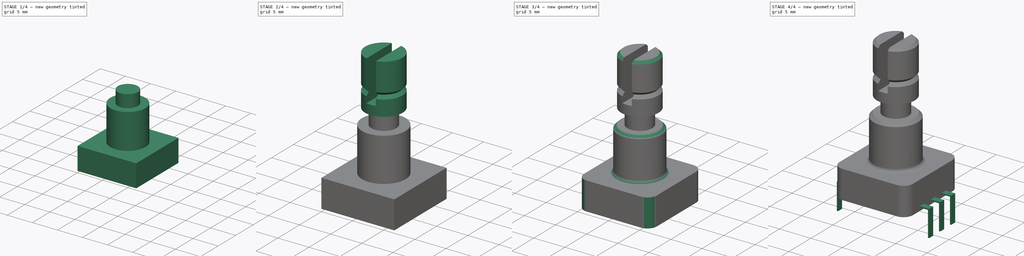
[diagram: build sequence overview — one tinted view per stage of 4, left to right]
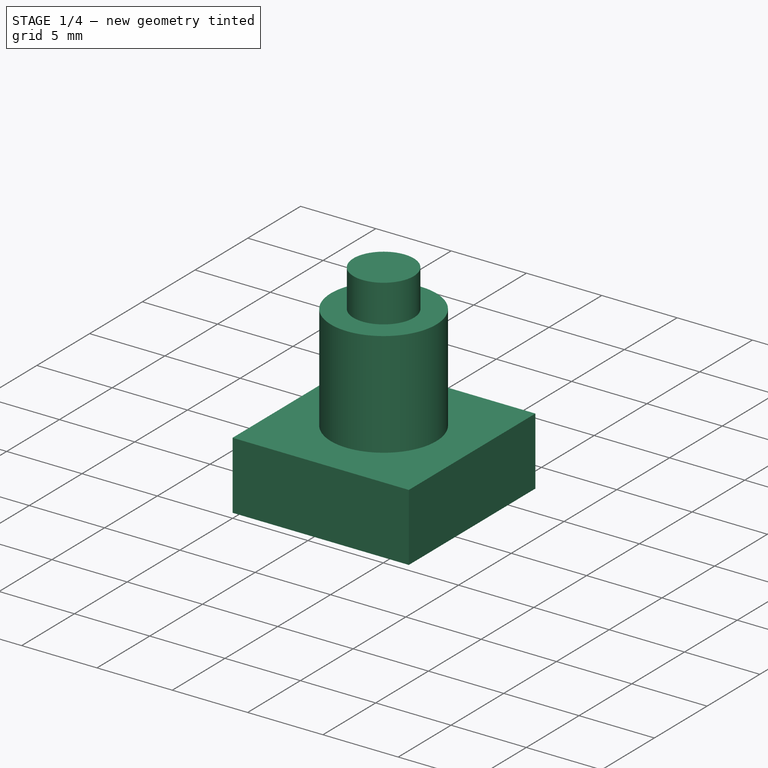
[diagram: stage 1 of 4 — iso view after this stage's code; geometry added in this stage tinted green]
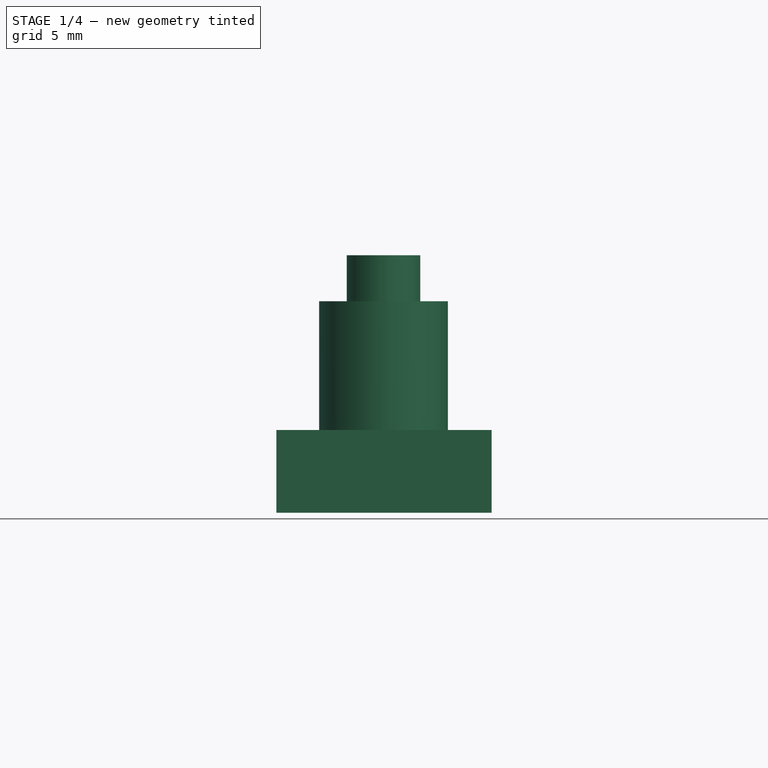
[diagram: stage 1 of 4 — front view after this stage's code; geometry added in this stage tinted green]
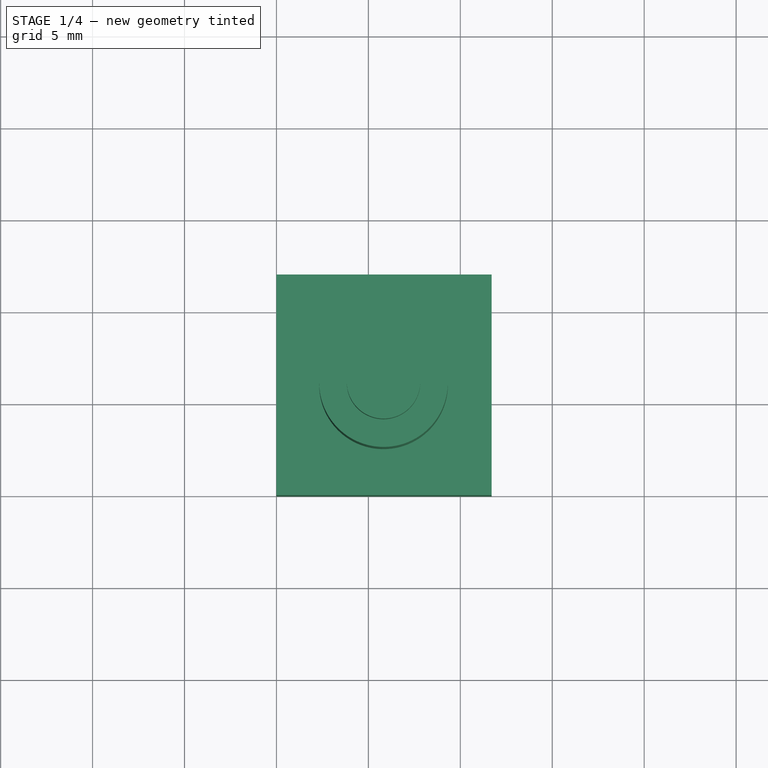
[diagram: stage 1 of 4 — top view after this stage's code; geometry added in this stage tinted green]
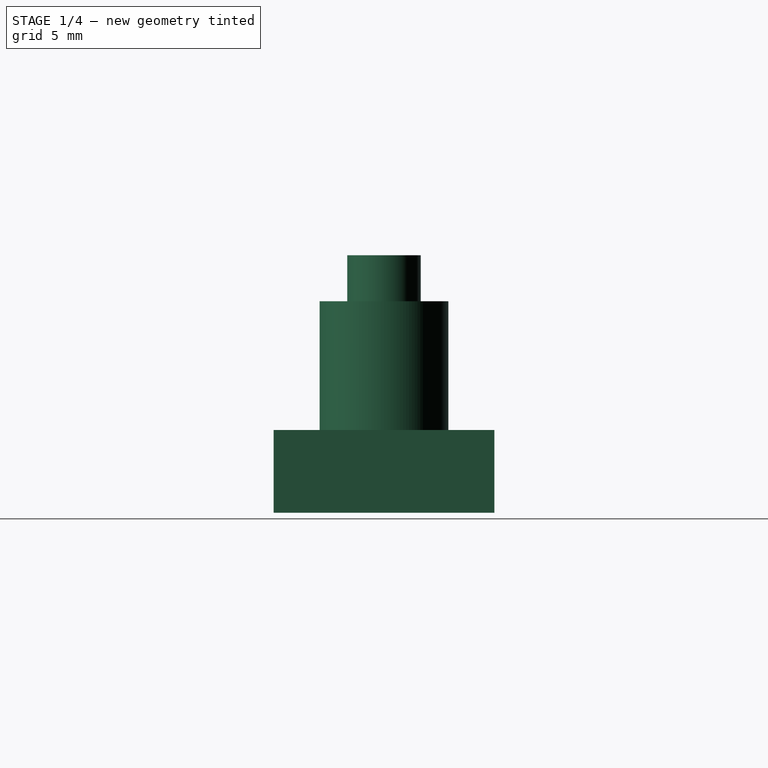
[diagram: stage 1 of 4 — right view after this stage's code; geometry added in this stage tinted green]
FCSTD DOCUMENT  (FreeCAD 1.0R39109 (Git))
Label: ALPSALPINE-EC11E09444A8
License: All rights reserved
LicenseURL: https://en.wikipedia.org/wiki/All_rights_reserved
objects: Sketcher::SketchObject×8, PartDesign::Pad×5, PartDesign::Plane×3, PartDesign::Pocket×2, PartDesign::Chamfer×2, PartDesign::Fillet×2, PartDesign::Groove×1, PartDesign::LinearPattern×1, PartDesign::Body×1
note: 58 computed .brp shape members not serialized (recipe doc carries the construction recipe); baked Part::Feature solids carry a one-line shape summary decoded from their .brp

FEATURE [Sketcher::SketchObject] Sketch
  ArcFitTolerance = 1e-06
  AttachmentSupport = -> [XY_Plane]
  FullyConstrained = true
  MakeInternals = false
  MapMode = 5
  sketch-geometry (4):
    g0: LineSegment StartX=0 StartY=0 StartZ=0 EndX=11.7 EndY=0 EndZ=0
    g1: LineSegment StartX=11.7 StartY=0 StartZ=0 EndX=11.7 EndY=12 EndZ=0
    g2: LineSegment StartX=11.7 StartY=12 StartZ=0 EndX=0 EndY=12 EndZ=0
    g3: LineSegment StartX=0 StartY=12 StartZ=0 EndX=0 EndY=0 EndZ=0
  constraints (11):
    c: Coincident(g0,g1)
    c: Coincident(g1,g2)
    c: Coincident(g2,g3)
    c: Coincident(g3,g0)
    c: Horizontal(g0)
    c: Horizontal(g2)
    c: Vertical(g1)
    c: Vertical(g3)
    c: Distance(g1,g3) = 11.7
    c: Distance(g0,g2) = 12
    c: Coincident(g0,g-1)
FEATURE [PartDesign::Pad] Pad
  Direction = (0,0,1)
  Length = 4.5
  Length2 = 10
  Profile = -> Sketch
  ReferenceAxis = -> Sketch [N_Axis]
  Refine = true
  Suppressed = false
  Type = 0
FEATURE [Sketcher::SketchObject] Sketch001
  ArcFitTolerance = 1e-06
  AttachmentSupport = -> [Pad]
  FullyConstrained = false
  MakeInternals = false
  MapMode = 5
  Placement = pos=(0,0,4.5) rot=(0,0,1;0rad)
  sketch-geometry (1):
    g0: Circle CenterX=5.82384 CenterY=6 CenterZ=0 NormalX=0 NormalY=0 NormalZ=1 AngleXU=0 Radius=3.5
  constraints (2):
    c: Diameter(g0) = 7
    c: DistanceY(g-1,g0) = 6
FEATURE [PartDesign::Pad] Pad001
  BaseFeature = -> Pad
  Direction = (0,0,1)
  Length = 7
  Length2 = 10
  Profile = -> Sketch001
  ReferenceAxis = -> Sketch001 [N_Axis]
  Refine = true
  Suppressed = false
  Type = 0
FEATURE [Sketcher::SketchObject] Sketch002
  ArcFitTolerance = 1e-06
  AttachmentSupport = -> [Pad001]
  ExternalGeometry = -> [Pad001]
  FullyConstrained = true
  MakeInternals = false
  MapMode = 5
  Placement = pos=(0,0,11.5) rot=(0,0,1;0rad)
  sketch-geometry (1):
    g0: Circle CenterX=5.82384 CenterY=6 CenterZ=0 NormalX=0 NormalY=0 NormalZ=1 AngleXU=0 Radius=2
  constraints (2):
    c: Coincident(g-3,g0)
    c: Diameter(g0) = 4
FEATURE [PartDesign::Pad] Pad002
  BaseFeature = -> Pad001
  Direction = (0,0,1)
  Length = 2.5
  Length2 = 10
  Profile = -> Sketch002
  ReferenceAxis = -> Sketch002 [N_Axis]
  Refine = true
  Suppressed = false
  Type = 0
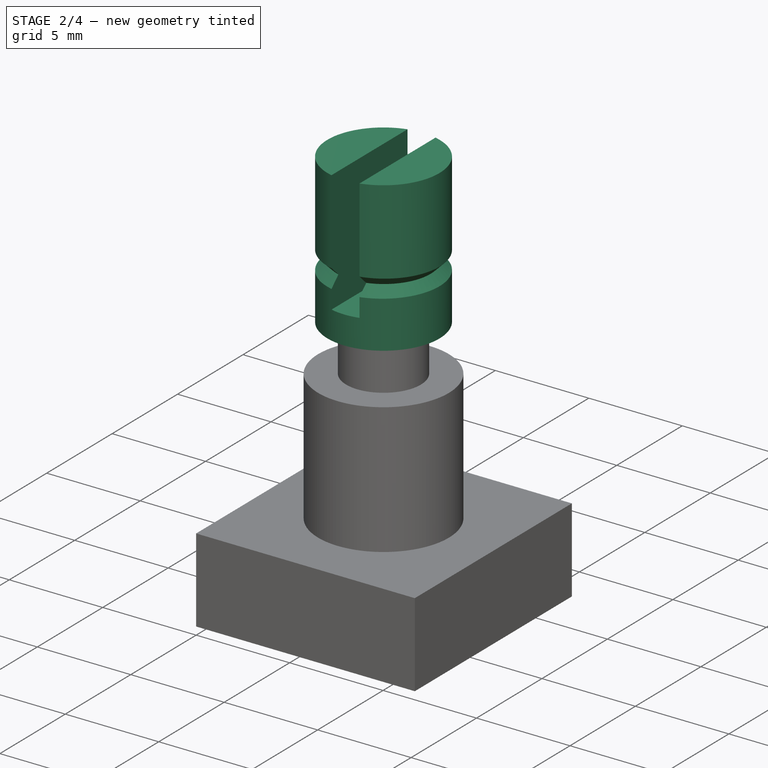
[diagram: stage 2 of 4 — iso view after this stage's code; geometry added in this stage tinted green]
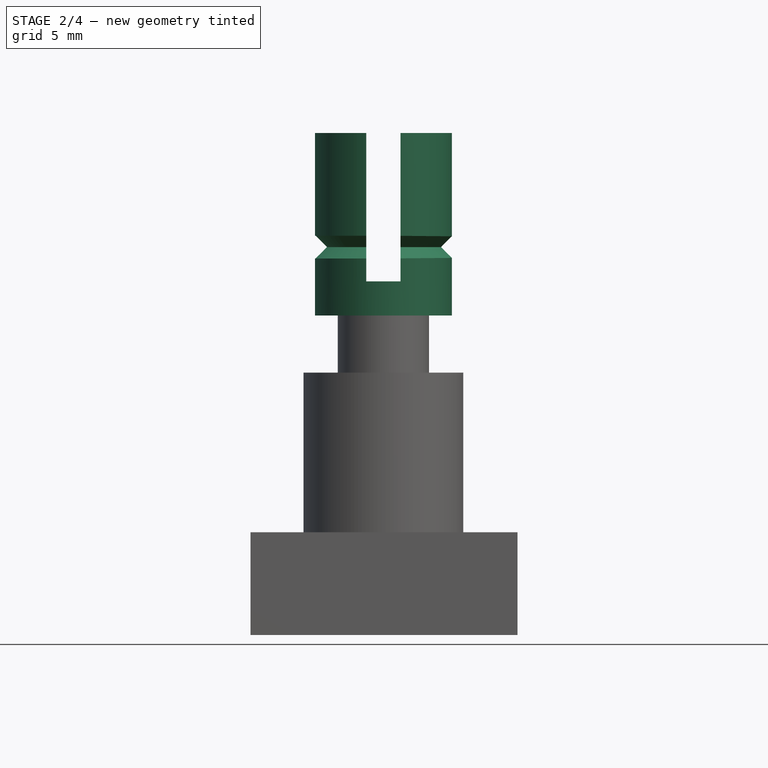
[diagram: stage 2 of 4 — front view after this stage's code; geometry added in this stage tinted green]
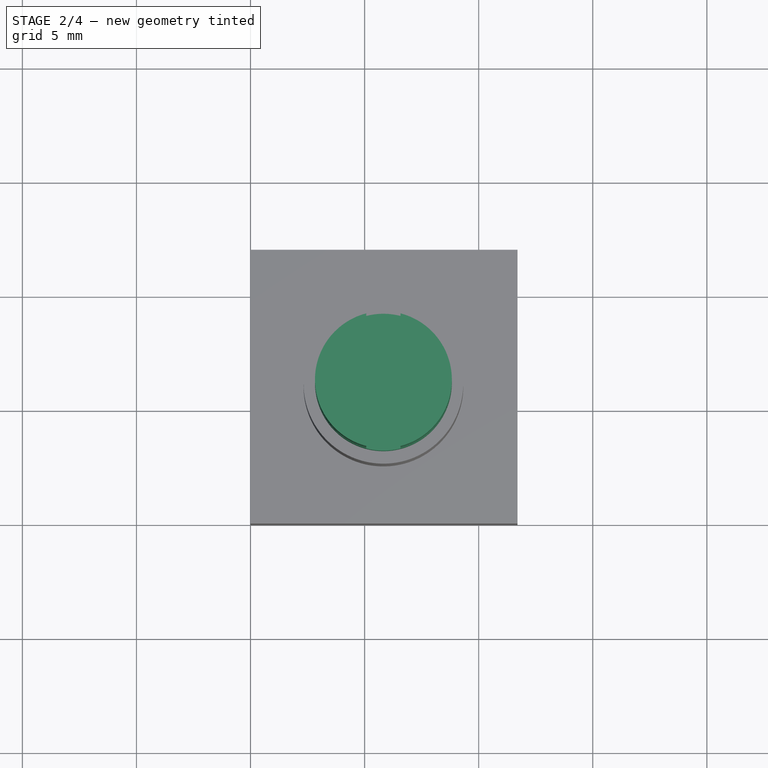
[diagram: stage 2 of 4 — top view after this stage's code; geometry added in this stage tinted green]
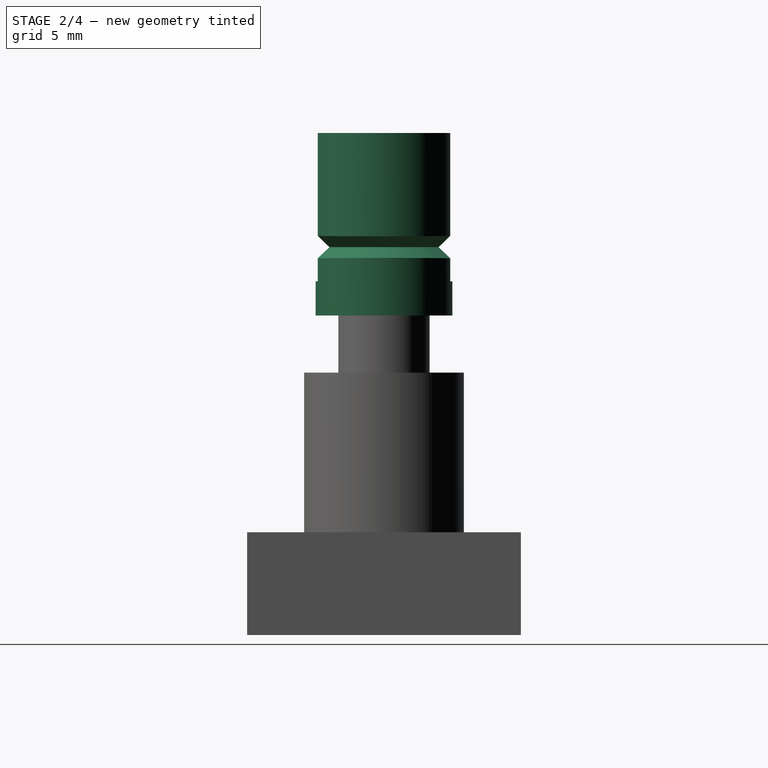
[diagram: stage 2 of 4 — right view after this stage's code; geometry added in this stage tinted green]
FEATURE [Sketcher::SketchObject] Sketch004
  ArcFitTolerance = 1e-06
  AttachmentSupport = -> [Pad002]
  ExternalGeometry = -> [Pad002]
  FullyConstrained = true
  MakeInternals = false
  MapMode = 5
  Placement = pos=(0,0,14) rot=(0,0,1;0rad)
  sketch-geometry (1):
    g0: Circle CenterX=5.82384 CenterY=6 CenterZ=0 NormalX=0 NormalY=0 NormalZ=1 AngleXU=0 Radius=3
  constraints (2):
    c: Coincident(g-3,g0)
    c: Diameter(g0) = 6
FEATURE [PartDesign::Pad] Pad003
  BaseFeature = -> Pad002
  Direction = (0,0,1)
  Length = 8
  Length2 = 10
  Profile = -> Sketch004
  ReferenceAxis = -> Sketch004 [N_Axis]
  Refine = true
  Suppressed = false
  Type = 0
FEATURE [PartDesign::Plane] DatumPlane
  AttachmentOffset = pos=(0,0,0) rot=(0,1,0;1.5708rad)
  AttachmentSupport = -> [Pad003]
  Length = 60
  MapMode = 45
  Placement = pos=(5.85,6,2.25) rot=(0,1,0;1.5708rad)
  ResizeMode = 0
  Width = 60
FEATURE [Sketcher::SketchObject] Sketch005
  ArcFitTolerance = 1e-06
  AttachmentSupport = -> [DatumPlane]
  ExternalGeometry = -> [Pad003]
  FullyConstrained = false
  MakeInternals = false
  MapMode = 5
  Placement = pos=(5.85,6,2.25) rot=(0,1,0;1.5708rad)
  sketch-geometry (8):
    g0: LineSegment [constr] StartX=-19.75 StartY=3 StartZ=0 EndX=-11.75 EndY=3 EndZ=0
    g1: LineSegment StartX=-15.25 StartY=3 StartZ=0 EndX=-14.75 EndY=2.5 EndZ=0
    g2: LineSegment StartX=-14.25 StartY=3 StartZ=0 EndX=-14.75 EndY=2.5 EndZ=0
    g3: LineSegment StartX=-15.25 StartY=3 StartZ=0 EndX=-14.25 EndY=3 EndZ=0
    g4: LineSegment StartX=-15.25 StartY=3 StartZ=0 EndX=-14.25 EndY=3 EndZ=0
    g5: LineSegment StartX=-14.25 StartY=3 StartZ=0 EndX=-14.25 EndY=3.203 EndZ=0
    g6: LineSegment StartX=-14.25 StartY=3.203 StartZ=0 EndX=-15.25 EndY=3.203 EndZ=0
    g7: LineSegment StartX=-15.25 StartY=3.203 StartZ=0 EndX=-15.25 EndY=3 EndZ=0
  constraints (20):
    c: Coincident(g0,g-4)
    c: Coincident(g0,g-3)
    c: PointOnObject(g1,g0)
    c: PointOnObject(g2,g0)
    c: Coincident(g2,g1)
    c: Angle(g2,g1) = 1.5708
    c: DistanceX(g1,g2) = 1
    c: DistanceX(g0,g1) = 4.5
    c: Coincident(g3,g1)
    c: Coincident(g3,g2)
    c: Equal(g2,g1)
    c: Coincident(g4,g5)
    c: Coincident(g5,g6)
    c: Coincident(g6,g7)
    c: Coincident(g7,g4)
    c: Horizontal(g6)
    c: Vertical(g5)
    c: Vertical(g7)
    c: Coincident(g4,g1)
    c: Coincident(g4,g2)
FEATURE [PartDesign::Groove] Groove
  Angle = 360
  Angle2 = 60
  Axis = (2e-16,0,-1)
  Base = (5.85,6,2.25)
  BaseFeature = -> Pad003
  Profile = -> Sketch005
  ReferenceAxis = -> Sketch005 [H_Axis]
  Refine = true
  Reversed = true
  Suppressed = false
  Type = 0
FEATURE [Sketcher::SketchObject] Sketch006
  ArcFitTolerance = 1e-06
  AttachmentSupport = -> [Groove]
  ExternalGeometry = -> [Groove]
  FullyConstrained = true
  MakeInternals = false
  MapMode = 5
  Placement = pos=(0,0,22) rot=(0,0,1;0rad)
  sketch-geometry (4):
    g0: LineSegment StartX=5.07384 StartY=8.90474 StartZ=0 EndX=5.07384 EndY=3.09526 EndZ=0
    g1: LineSegment StartX=6.57384 StartY=3.09526 StartZ=0 EndX=6.57384 EndY=8.90474 EndZ=0
    g2: ArcOfCircle CenterX=5.82384 CenterY=6 CenterZ=0 NormalX=0 NormalY=0 NormalZ=1 AngleXU=0 Radius=3 StartAngle=1.31812 EndAngle=1.82348
    g3: ArcOfCircle CenterX=5.82384 CenterY=6 CenterZ=0 NormalX=0 NormalY=0 NormalZ=1 AngleXU=0 Radius=3 StartAngle=4.45971 EndAngle=4.96507
  constraints (12):
    c: Vertical(g0)
    c: Vertical(g1)
    c: PointOnObject(g0,g-3)
    c: PointOnObject(g1,g-3)
    c: DistanceX(g0,g1) = 1.5
    c: Coincident(g3,g0)
    c: Coincident(g2,g-3)
    c: Coincident(g3,g1)
    c: Coincident(g2,g0)
    c: Coincident(g1,g2)
    c: Coincident(g3,g2)
    c: Distance(g2,g1) = 0.75
FEATURE [PartDesign::Pocket] Pocket
  BaseFeature = -> Groove
  Direction = (0,0,-1)
  Length = 6.5
  Length2 = 5
  Profile = -> Sketch006
  ReferenceAxis = -> Sketch006 [N_Axis]
  Refine = true
  Suppressed = false
  Type = 0
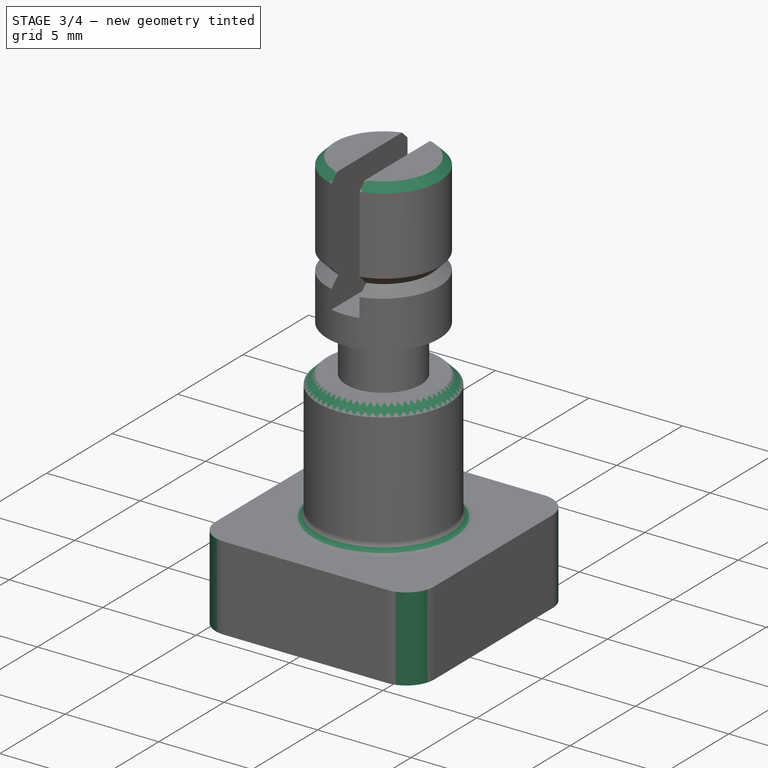
[diagram: stage 3 of 4 — iso view after this stage's code; geometry added in this stage tinted green]
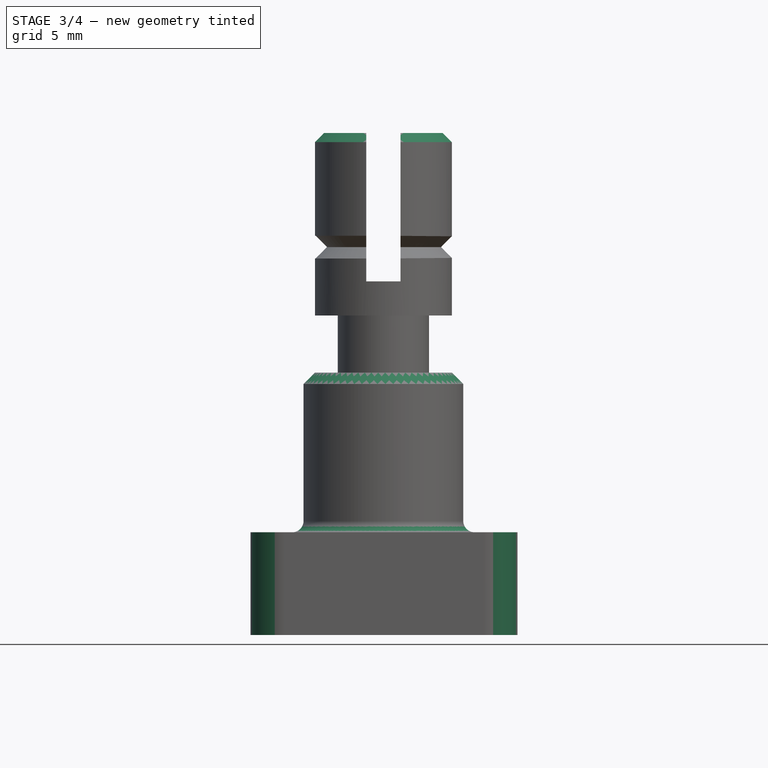
[diagram: stage 3 of 4 — front view after this stage's code; geometry added in this stage tinted green]
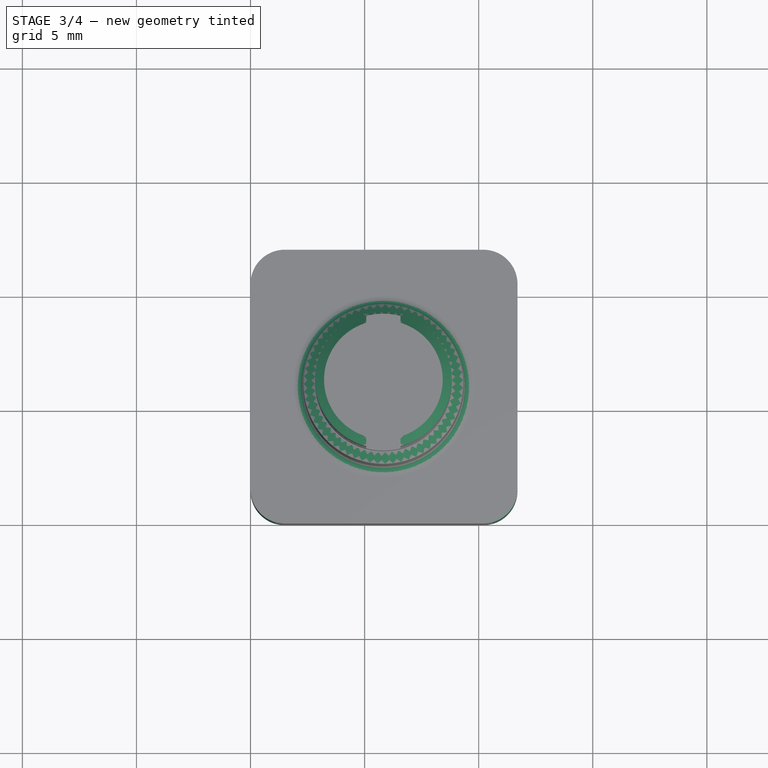
[diagram: stage 3 of 4 — top view after this stage's code; geometry added in this stage tinted green]
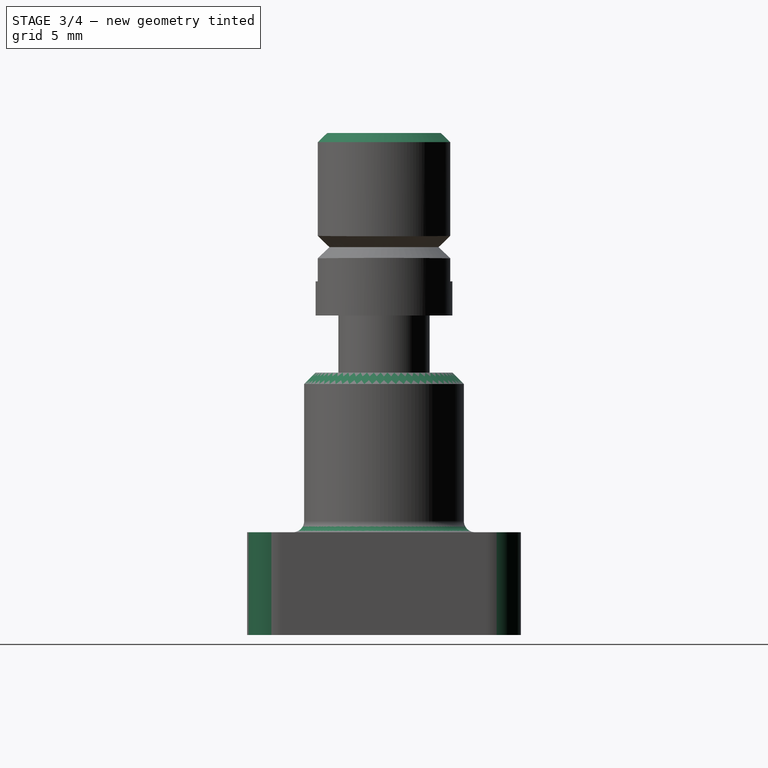
[diagram: stage 3 of 4 — right view after this stage's code; geometry added in this stage tinted green]
FEATURE [PartDesign::Chamfer] Chamfer
  Angle = 45
  Base = -> Pocket [Edge55,Edge54,Edge56]
  BaseFeature = -> Pocket
  ChamferType = 0
  FlipDirection = false
  Refine = true
  Size = 0.4
  Size2 = 1
  SupportTransform = false
  Suppressed = false
  UseAllEdges = false
FEATURE [PartDesign::Chamfer] Chamfer001
  Angle = 45
  Base = -> Chamfer [Edge53]
  BaseFeature = -> Chamfer
  ChamferType = 0
  FlipDirection = false
  Refine = true
  Size = 0.5
  Size2 = 1
  SupportTransform = false
  Suppressed = false
  UseAllEdges = false
FEATURE [PartDesign::Fillet] Fillet
  Base = -> Chamfer001 [Edge8]
  BaseFeature = -> Chamfer001
  Radius = 0.5
  Refine = true
  SupportTransform = false
  Suppressed = false
  UseAllEdges = false
FEATURE [PartDesign::Fillet] Fillet001
  Base = -> Fillet [Edge14,Edge18,Edge16,Edge13]
  BaseFeature = -> Fillet
  Radius = 1.5
  Refine = true
  SupportTransform = false
  Suppressed = false
  UseAllEdges = false
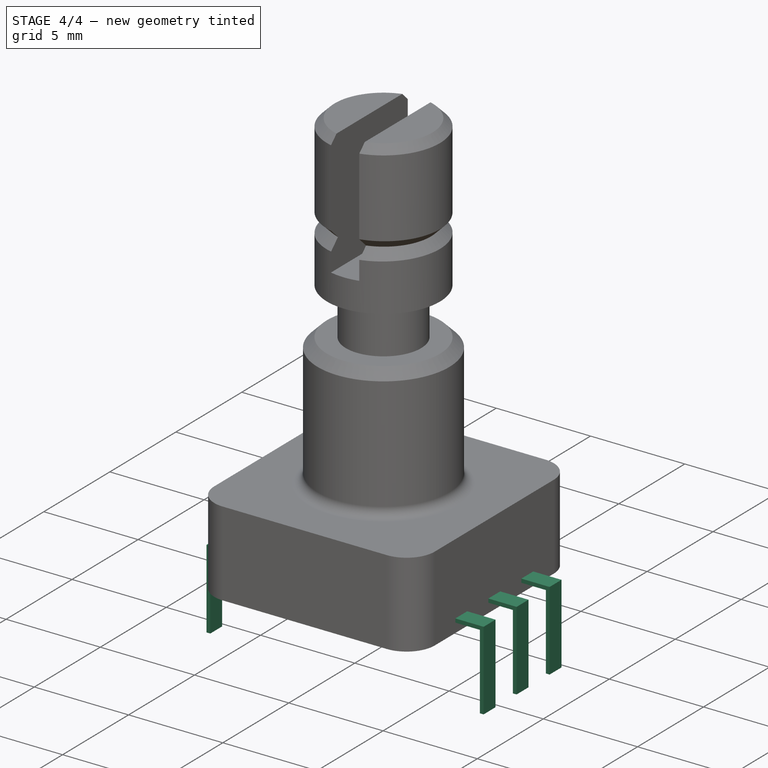
[diagram: stage 4 of 4 — iso view after this stage's code; geometry added in this stage tinted green]
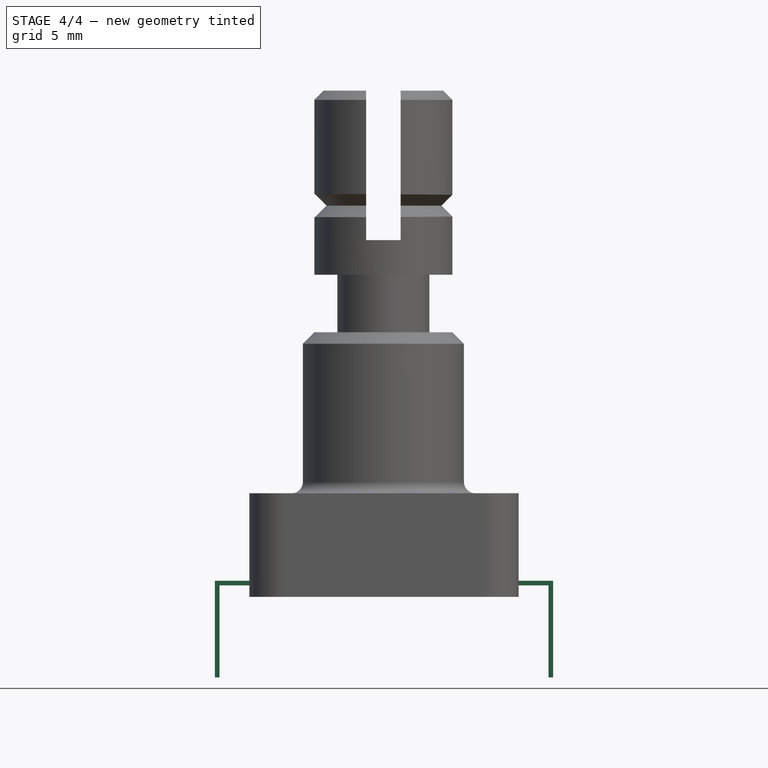
[diagram: stage 4 of 4 — front view after this stage's code; geometry added in this stage tinted green]
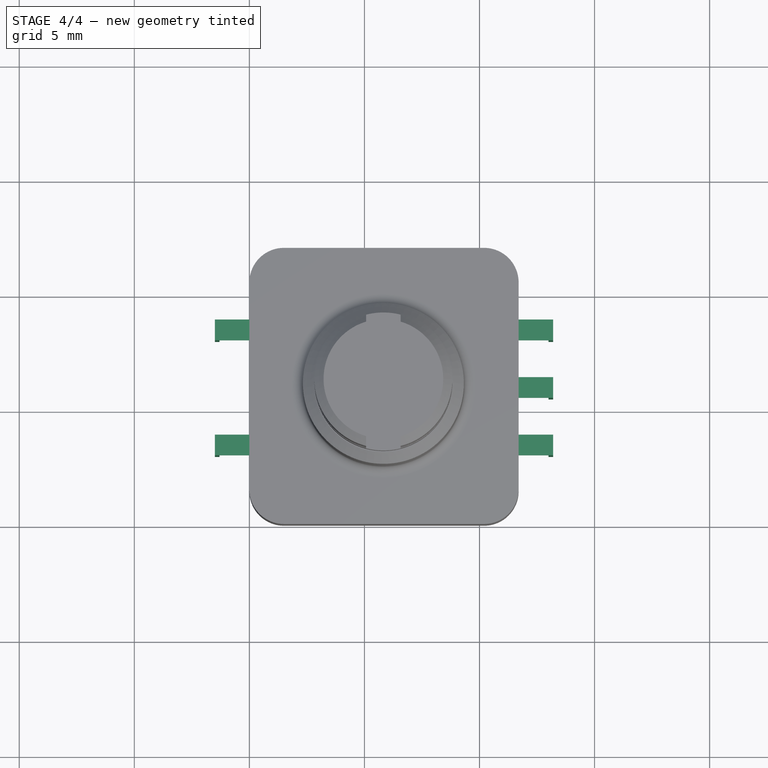
[diagram: stage 4 of 4 — top view after this stage's code; geometry added in this stage tinted green]
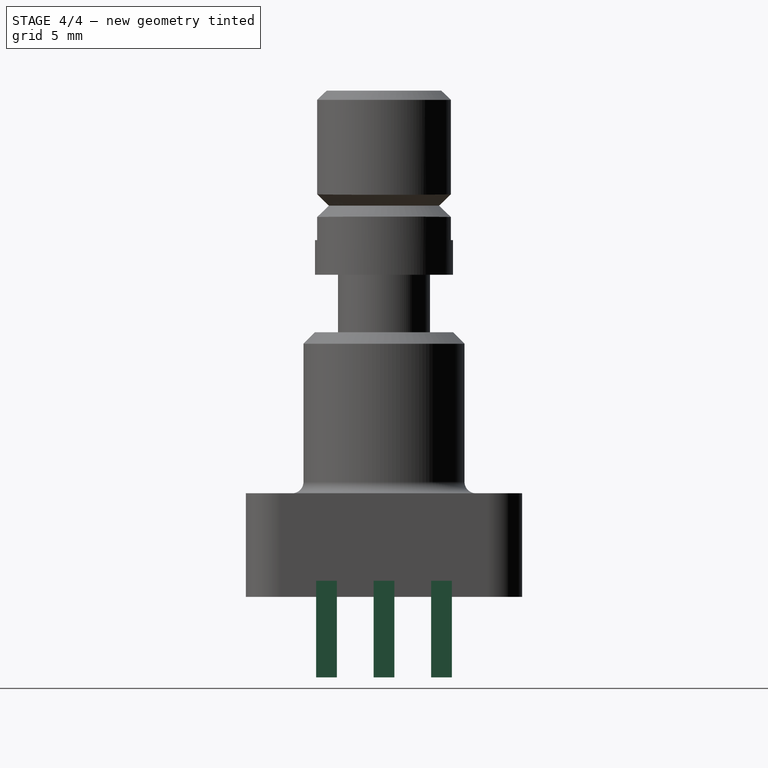
[diagram: stage 4 of 4 — right view after this stage's code; geometry added in this stage tinted green]
FEATURE [PartDesign::Plane] DatumPlane001
  AttachmentOffset = pos=(0,-2.5,0) rot=(0.57735,0.57735,-0.57735;2.0944rad)
  AttachmentSupport = -> [Fillet001]
  Length = 60
  MapMode = 45
  Placement = pos=(5.85,3.5,2.25) rot=(0.57735,0.57735,-0.57735;2.0944rad)
  ResizeMode = 0
  Width = 60
FEATURE [Sketcher::SketchObject] Sketch007
  ArcFitTolerance = 1e-06
  AttachmentOffset = pos=(0,0,0) rot=(0,0,1;1.5708rad)
  AttachmentSupport = -> [DatumPlane001]
  ExternalGeometry = -> [Fillet001]
  FullyConstrained = false
  MakeInternals = false
  MapMode = 5
  Placement = pos=(5.85,3.5,2.25) rot=(1,0,0;1.5708rad)
  sketch-geometry (14):
    g0: LineSegment StartX=5.85 StartY=-1.55 StartZ=0 EndX=5.85 EndY=-1.75 EndZ=0
    g1: LineSegment StartX=5.85 StartY=-1.75 StartZ=0 EndX=7.15 EndY=-1.75 EndZ=0
    g2: LineSegment StartX=7.35 StartY=-1.55 StartZ=0 EndX=5.85 EndY=-1.55 EndZ=0
    g3: LineSegment StartX=7.35 StartY=-1.75 StartZ=0 EndX=7.35 EndY=-5.75 EndZ=0
    g4: LineSegment StartX=7.35 StartY=-5.75 StartZ=0 EndX=7.15 EndY=-5.75 EndZ=0
    g5: LineSegment StartX=7.15 StartY=-1.75 StartZ=0 EndX=7.15 EndY=-5.75 EndZ=0
    g6: LineSegment StartX=7.35 StartY=-1.75 StartZ=0 EndX=7.35 EndY=-1.55 EndZ=0
    g7: LineSegment StartX=-5.85 StartY=-1.55 StartZ=0 EndX=-5.85 EndY=-1.75 EndZ=0
    g8: LineSegment StartX=-5.85 StartY=-1.75 StartZ=0 EndX=-7.15 EndY=-1.75 EndZ=0
    g9: LineSegment StartX=-7.35 StartY=-1.55 StartZ=0 EndX=-5.85 EndY=-1.55 EndZ=0
    g10: LineSegment StartX=-7.35 StartY=-1.75 StartZ=0 EndX=-7.35 EndY=-5.75 EndZ=0
    g11: LineSegment StartX=-7.35 StartY=-5.75 StartZ=0 EndX=-7.15 EndY=-5.75 EndZ=0
    g12: LineSegment StartX=-7.15 StartY=-1.75 StartZ=0 EndX=-7.15 EndY=-5.75 EndZ=0
    g13: LineSegment StartX=-7.35 StartY=-1.75 StartZ=0 EndX=-7.35 EndY=-1.55 EndZ=0
  constraints (37):
    c: Coincident(g0,g1)
    c: Coincident(g2,g0)
    c: Vertical(g0)
    c: Horizontal(g1)
    c: Horizontal(g2)
    c: PointOnObject(g0,g-3)
    c: Coincident(g3,g4)
    c: Horizontal(g4)
    c: Vertical(g3)
    c: Distance(g1,g2) = 0.2
    c: PointOnObject(g3,g1)
    c: Distance(g4,g3) = 0.2
    c: Distance(g-4,g1) = 0.5
    c: Distance(g4,g-4) = 3.5
    c: Coincident(g5,g1)
    c: Coincident(g5,g4)
    c: Vertical(g5)
    c: Coincident(g6,g3)
    c: Coincident(g6,g2)
    c: Parallel(g6,g-3)
    c: Distance(g-3,g3) = 1.5
    c: Coincident(g7,g8)
    c: Coincident(g9,g7)
    c: Vertical(g7)
    c: Horizontal(g8)
    c: Horizontal(g9)
    c: Coincident(g10,g11)
    c: Horizontal(g11)
    c: Vertical(g10)
    c: Distance(g8,g9) = 0.2
    c: PointOnObject(g10,g8)
    c: Distance(g11,g10) = 0.2
    c: Coincident(g12,g8)
    c: Coincident(g12,g11)
    c: Vertical(g12)
    c: Coincident(g13,g10)
    c: Coincident(g13,g9)
FEATURE [PartDesign::Pad] Pad004
  BaseFeature = -> Fillet001
  Direction = (0,-1,0)
  Length = 0.45
  Length2 = 0.45
  Profile = -> Sketch007
  ReferenceAxis = -> Sketch007 [N_Axis]
  Refine = true
  Suppressed = false
  Type = 4
FEATURE [PartDesign::LinearPattern] LinearPattern
  BaseFeature = -> Pad004
  Direction = -> Sketch007 [N_Axis]
  Length = 5
  Mode = 1
  Occurrences = 3
  Offset = 2.5
  Originals = -> [Pad004]
  Refine = true
  Reversed = true
  Suppressed = false
  TransformMode = 0
FEATURE [PartDesign::Plane] DatumPlane002
  AttachmentOffset = pos=(0,0,0) rot=(0.57735,0.57735,-0.57735;2.0944rad)
  AttachmentSupport = -> [LinearPattern]
  Length = 60
  MapMode = 45
  Placement = pos=(5.85,6,2.25) rot=(0.57735,0.57735,-0.57735;2.0944rad)
  ResizeMode = 0
  Width = 60
FEATURE [Sketcher::SketchObject] Sketch008
  ArcFitTolerance = 1e-06
  AttachmentSupport = -> [DatumPlane002]
  ExternalGeometry = -> [LinearPattern]
  FullyConstrained = true
  MakeInternals = false
  MapMode = 5
  Placement = pos=(5.85,6,2.25) rot=(0.57735,0.57735,-0.57735;2.0944rad)
  sketch-geometry (6):
    g0: LineSegment StartX=1.55 StartY=-7.35 StartZ=0 EndX=1.55 EndY=-5.85 EndZ=0
    g1: LineSegment StartX=1.55 StartY=-5.85 StartZ=0 EndX=1.75 EndY=-5.85 EndZ=0
    g2: LineSegment StartX=1.75 StartY=-5.85 StartZ=0 EndX=1.75 EndY=-7.15 EndZ=0
    g3: LineSegment StartX=1.75 StartY=-7.15 StartZ=0 EndX=5.75 EndY=-7.15 EndZ=0
    g4: LineSegment StartX=5.75 StartY=-7.15 StartZ=0 EndX=5.75 EndY=-7.35 EndZ=0
    g5: LineSegment StartX=5.75 StartY=-7.35 StartZ=0 EndX=1.55 EndY=-7.35 EndZ=0
  constraints (12):
    c: Coincident(g0,g-6)
    c: Coincident(g0,g-6)
    c: Coincident(g1,g0)
    c: Coincident(g1,g-7)
    c: Coincident(g2,g1)
    c: Coincident(g2,g-7)
    c: Coincident(g3,g2)
    c: Coincident(g3,g-8)
    c: Coincident(g4,g3)
    c: Coincident(g4,g-8)
    c: Coincident(g5,g4)
    c: Coincident(g5,g0)
FEATURE [PartDesign::Pocket] Pocket001
  BaseFeature = -> LinearPattern
  Direction = (0,1,0)
  Length = 1
  Length2 = 1
  Profile = -> Sketch008
  ReferenceAxis = -> Sketch008 [N_Axis]
  Refine = true
  Suppressed = false
  Type = 4
FEATURE [PartDesign::Body] Body
  AllowCompound = false
  Group = -> [Sketch,Pad,Sketch001,Pad001,Sketch002,Pad002,Sketch004,Pad003,DatumPlane,Sketch005,Groove,Sketch006,Pocket,Chamfer,Chamfer001,Fillet,Fillet001,DatumPlane001,Sketch007,Pad004,LinearPattern,DatumPlane002,Sketch008,Pocket001]
  Origin = -> Origin
  Tip = -> Pocket001
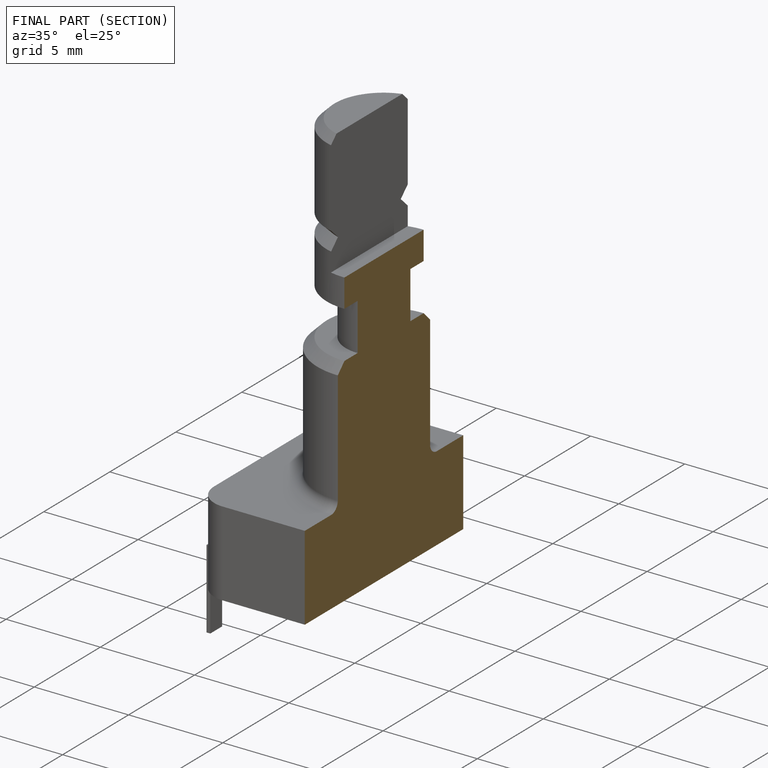
[diagram: finished part — half-section view (interior)]
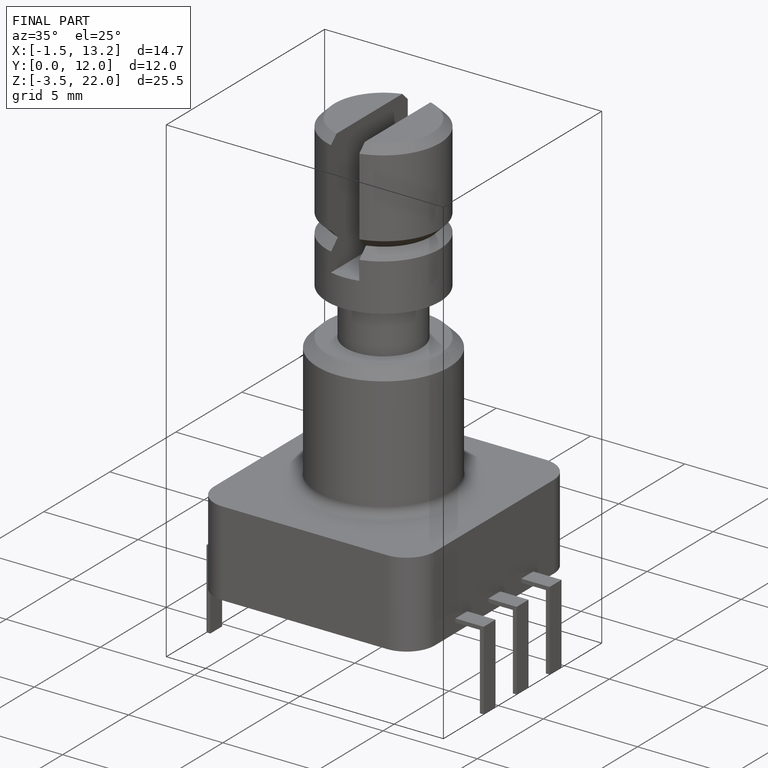
[diagram: finished part — iso view with bounding-box wireframe]
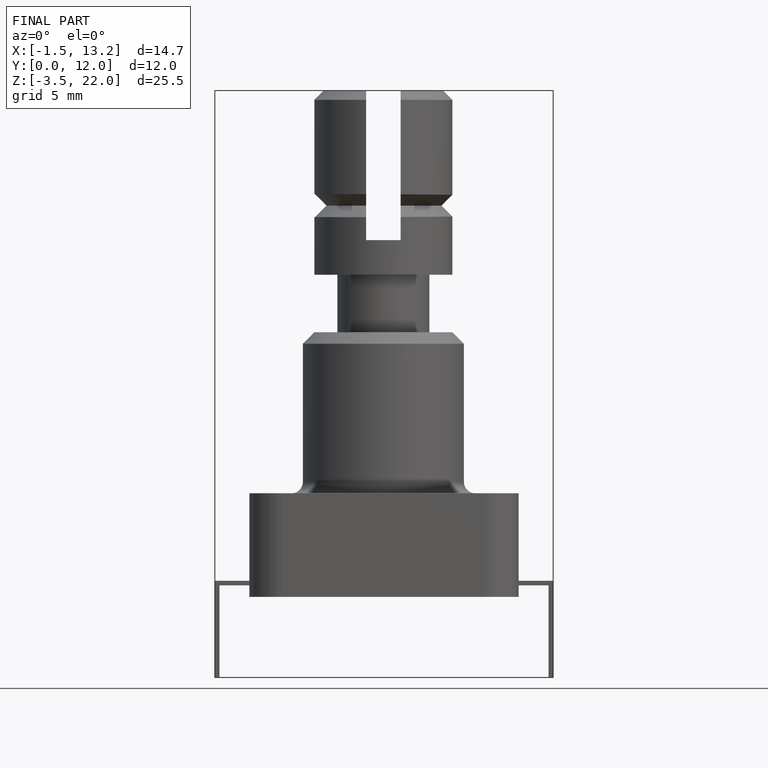
[diagram: finished part — front view with bounding-box wireframe]
